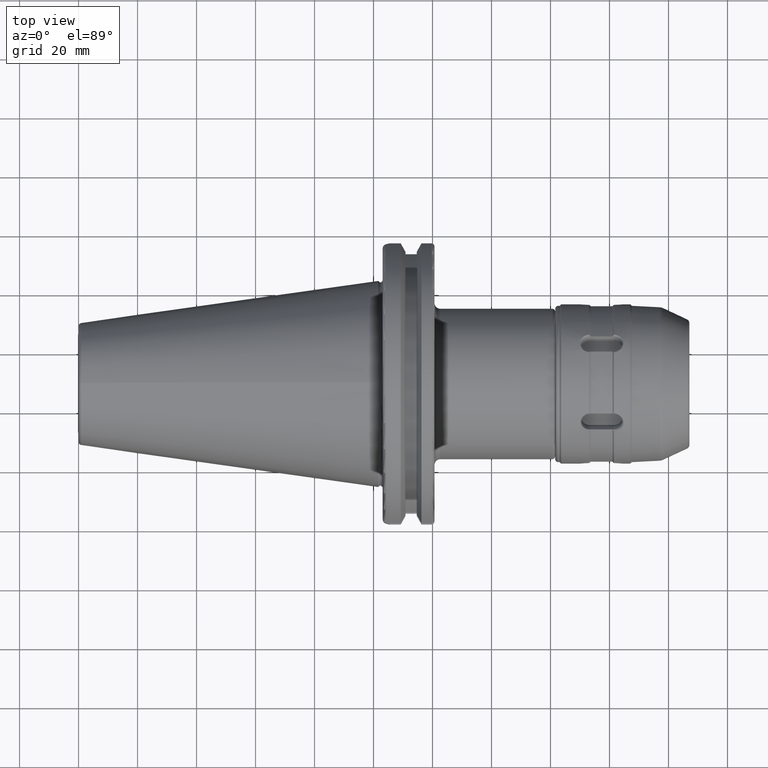
[diagram: clean part render]
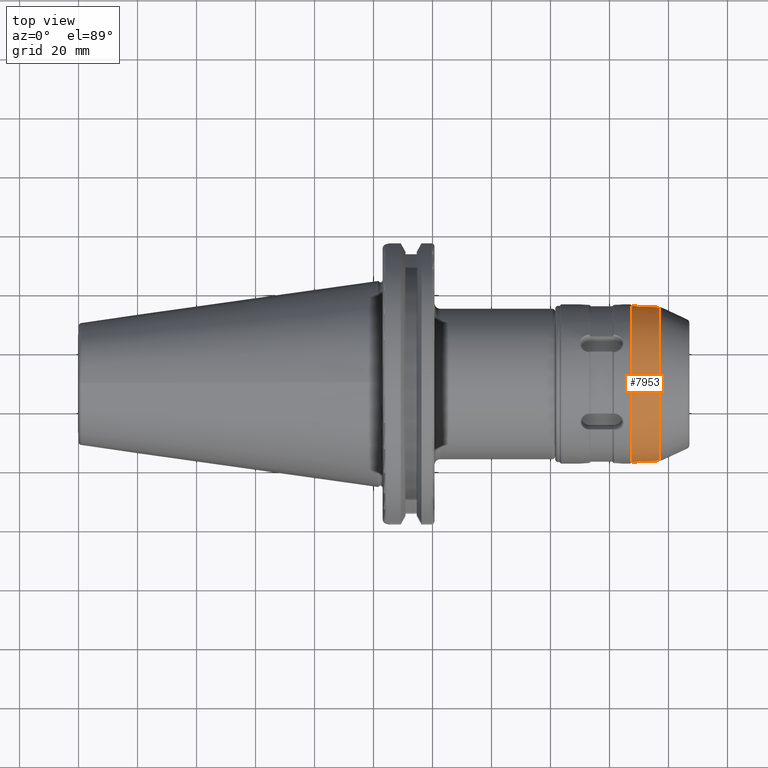
[diagram: same view with one face highlighted and labeled with its STEP entity id]
A machine part, top view. The second image highlights one B-rep face of the part: STEP entity #7953.
In plain terms, the highlighted conical surface has half-angle 2.924 deg.
Its self-contained STEP definition (entity closure, byte-faithful):
#4752=DIRECTION('',(9.986977465623E-1,-5.101775192455E-2,7.342010268876E-11));
#4753=VECTOR('',#4752,9.478833065665E0);
#4754=CARTESIAN_POINT('',(-1.959999999989E1,2.649999999989E1,
-6.974746698620E-10));
#4755=LINE('',#4754,#4753);
#4756=DIRECTION('',(9.986977465623E-1,5.101775192455E-2,-7.341992268849E-11));
#4757=VECTOR('',#4756,9.478833065665E0);
#4758=CARTESIAN_POINT('',(-1.959999999989E1,-2.649999999989E1,
6.974746698620E-10));
#4759=LINE('',#4758,#4757);
#4770=CARTESIAN_POINT('',(-1.013351077717E1,0.E0,0.E0));
#4771=DIRECTION('',(-1.E0,0.E0,0.E0));
#4772=DIRECTION('',(0.E0,-1.E0,0.E0));
#4773=AXIS2_PLACEMENT_3D('',#4770,#4771,#4772);
#4775=CARTESIAN_POINT('',(-1.959999999989E1,0.E0,0.E0));
#4776=DIRECTION('',(1.E0,0.E0,0.E0));
#4777=DIRECTION('',(0.E0,1.E0,-1.664002973790E-9));
#4778=AXIS2_PLACEMENT_3D('',#4775,#4776,#4777);
#4834=CARTESIAN_POINT('',(-1.959999999989E1,2.649999999989E1,
-4.409607880524E-8));
#4835=CARTESIAN_POINT('',(-1.959999999989E1,-2.649999999989E1,
-4.130617099630E-8));
#4836=VERTEX_POINT('',#4834);
#4837=VERTEX_POINT('',#4835);
#5006=CARTESIAN_POINT('',(-1.013351077717E1,-2.601641124601E1,
-1.624011344412E-14));
#5007=CARTESIAN_POINT('',(-1.013351077717E1,2.601641124601E1,0.E0));
#5008=VERTEX_POINT('',#5006);
#5009=VERTEX_POINT('',#5007);
#7941=CARTESIAN_POINT('',(-1.486675538853E1,0.E0,0.E0));
#7942=DIRECTION('',(-1.E0,0.E0,0.E0));
#7943=DIRECTION('',(0.E0,1.E0,0.E0));
#7944=AXIS2_PLACEMENT_3D('',#7941,#7942,#7943);
#7945=CONICAL_SURFACE('',#7944,2.625820562295E1,2.9243714E0);
#7946=ORIENTED_EDGE('',*,*,#7932,.F.);
#7947=ORIENTED_EDGE('',*,*,#7907,.F.);
#7949=ORIENTED_EDGE('',*,*,#7948,.F.);
#7950=ORIENTED_EDGE('',*,*,#7904,.T.);
#7951=EDGE_LOOP('',(#7946,#7947,#7949,#7950));
#7952=FACE_OUTER_BOUND('',#7951,.F.);
#7953=ADVANCED_FACE('',(#7952),#7945,.T.);
#4774=CIRCLE('',#4773,2.601641124601E1);
#4779=CIRCLE('',#4778,2.649999999989E1);
#7904=EDGE_CURVE('',#4836,#5009,#4755,.T.);
#7907=EDGE_CURVE('',#4837,#5008,#4759,.T.);
#7932=EDGE_CURVE('',#5008,#5009,#4774,.T.);
#7948=EDGE_CURVE('',#4836,#4837,#4779,.T.);